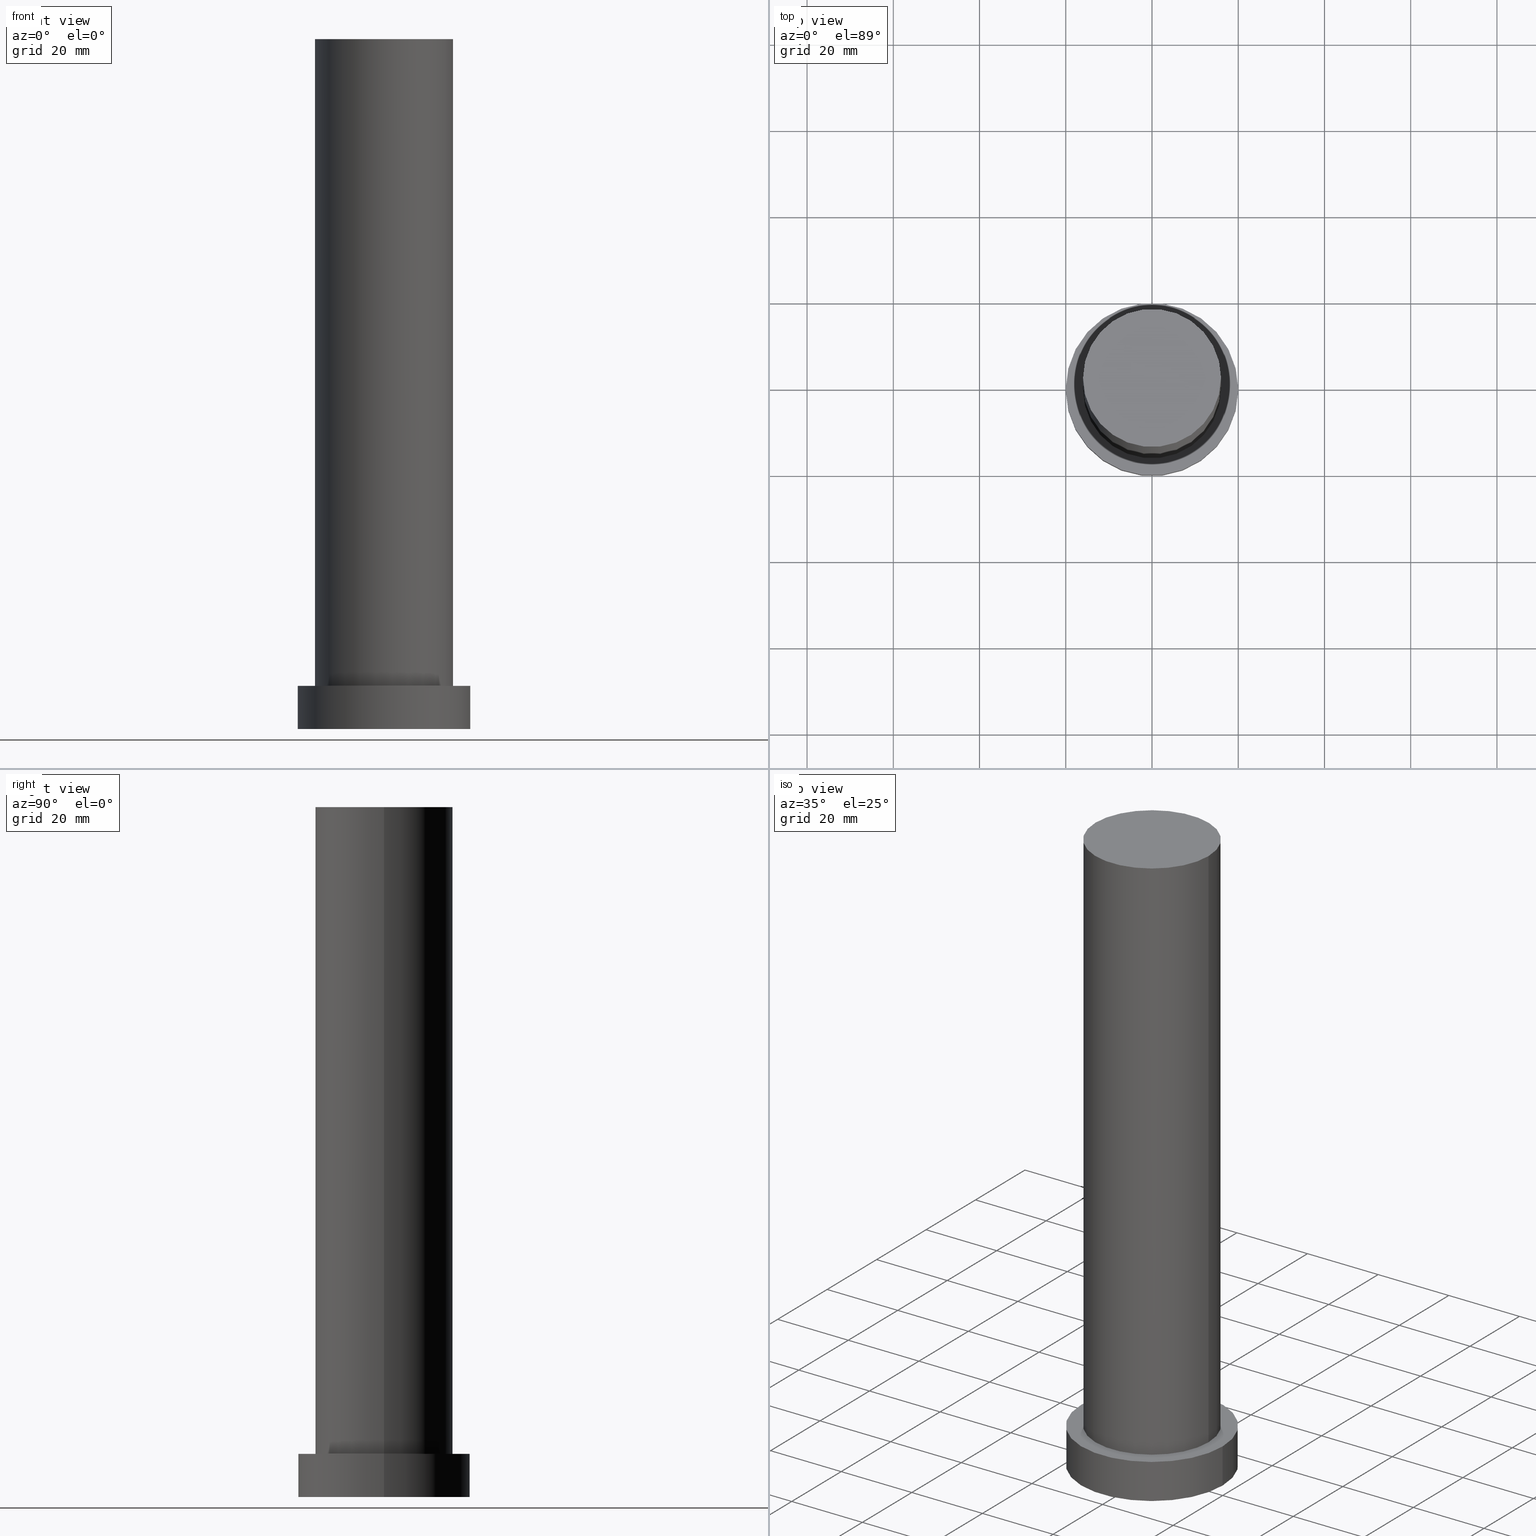
[diagram: canonical four-view strip — front | top / right | iso, engineering-drawing reading convention]
A machine part, canonical four-view strip (front | top / right | iso — engineering-drawing reading convention). The complete STEP part file that produces these views, byte-faithful:
ISO-10303-21;
HEADER;
FILE_DESCRIPTION (( 'STEP AP203' ),
    '1' );
FILE_NAME ('8360.STEP',
    '2023-02-12T10:26:55',
    ( '' ),
    ( '' ),
    'SwSTEP 2.0',
    'SolidWorks 2019',
    '' );
FILE_SCHEMA (( 'CONFIG_CONTROL_DESIGN' ));
ENDSEC;

DATA;
#1 = DIRECTION ( 'NONE',  ( -1.000000000000000000, 0.000000000000000000, 0.000000000000000000 ) ) ;
#2 = CC_DESIGN_PERSON_AND_ORGANIZATION_ASSIGNMENT ( #226, #243, ( #116 ) ) ;
#3 = FACE_BOUND ( 'NONE', #194, .T. ) ;
#4 = CARTESIAN_POINT ( 'NONE',  ( 0.000000000000000000, 0.000000000000000000, 10.00000000000000000 ) ) ;
#5 = CARTESIAN_POINT ( 'NONE',  ( 0.000000000000000000, 0.000000000000000000, 0.000000000000000000 ) ) ;
#6 = EDGE_CURVE ( 'NONE', #139, #18, #240, .T. ) ;
#7 = COORDINATED_UNIVERSAL_TIME_OFFSET ( 1, 0, .AHEAD. ) ;
#8 = APPROVAL_DATE_TIME ( #87, #122 ) ;
#9 = EDGE_CURVE ( 'NONE', #158, #244, #114, .T. ) ;
#10 = DATE_AND_TIME ( #29, #184 ) ;
#11 = CARTESIAN_POINT ( 'NONE',  ( 0.000000000000000000, 0.000000000000000000, 160.0000000000000000 ) ) ;
#12 = CC_DESIGN_PERSON_AND_ORGANIZATION_ASSIGNMENT ( #169, #31, ( #127 ) ) ;
#13 = AXIS2_PLACEMENT_3D ( 'NONE', #74, #197, #157 ) ;
#14 = FACE_OUTER_BOUND ( 'NONE', #88, .T. ) ;
#15 = CYLINDRICAL_SURFACE ( 'NONE', #227, 20.00000000000000000 ) ;
#16 = ADVANCED_FACE ( 'NONE', ( #39 ), #179, .T. ) ;
#17 = ORIENTED_EDGE ( 'NONE', *, *, #9, .T. ) ;
#18 = VERTEX_POINT ( 'NONE', #77 ) ;
#19 = AXIS2_PLACEMENT_3D ( 'NONE', #186, #80, #168 ) ;
#20 = CARTESIAN_POINT ( 'NONE',  ( 16.00000000000000000, 1.959434878635765131E-15, 160.0000000000000000 ) ) ;
#21 = PLANE ( 'NONE',  #67 ) ;
#22 = ORGANIZATION ( 'NEUR�EN�', 'NEUR�EN�', '' ) ;
#23 = CARTESIAN_POINT ( 'NONE',  ( -16.00000000000000000, 0.000000000000000000, 160.0000000000000000 ) ) ;
#24 = CARTESIAN_POINT ( 'NONE',  ( 0.000000000000000000, 0.000000000000000000, 160.0000000000000000 ) ) ;
#25 = APPROVAL_ROLE ( '' ) ;
#26 =( GEOMETRIC_REPRESENTATION_CONTEXT ( 3 ) GLOBAL_UNCERTAINTY_ASSIGNED_CONTEXT ( ( #207 ) ) GLOBAL_UNIT_ASSIGNED_CONTEXT ( ( #66, #199, #241 ) ) REPRESENTATION_CONTEXT ( 'NONE', 'WORKASPACE' ) );
#27 = APPROVAL_STATUS ( 'not_yet_approved' ) ;
#28 = CALENDAR_DATE ( 2023, 12, 2 ) ;
#29 = CALENDAR_DATE ( 2023, 12, 2 ) ;
#30 = LOCAL_TIME ( 11, 26, 55.00000000000000000, #246 ) ;
#31 = PERSON_AND_ORGANIZATION_ROLE ( 'classification_officer' ) ;
#32 = ORIENTED_EDGE ( 'NONE', *, *, #177, .F. ) ;
#33 = CC_DESIGN_DATE_AND_TIME_ASSIGNMENT ( #10, #68, ( #149 ) ) ;
#34 = ORIENTED_EDGE ( 'NONE', *, *, #6, .T. ) ;
#35 = DIRECTION ( 'NONE',  ( -1.000000000000000000, 0.000000000000000000, 0.000000000000000000 ) ) ;
#36 = AXIS2_PLACEMENT_3D ( 'NONE', #11, #92, #118 ) ;
#37 = DIRECTION ( 'NONE',  ( 0.000000000000000000, 0.000000000000000000, 1.000000000000000000 ) ) ;
#38 = CIRCLE ( 'NONE', #19, 16.00000000000000000 ) ;
#39 = FACE_OUTER_BOUND ( 'NONE', #255, .T. ) ;
#40 = CARTESIAN_POINT ( 'NONE',  ( 0.000000000000000000, 0.000000000000000000, 160.0000000000000000 ) ) ;
#41 = DIRECTION ( 'NONE',  ( 0.000000000000000000, 0.000000000000000000, 1.000000000000000000 ) ) ;
#42 = ADVANCED_FACE ( 'NONE', ( #75 ), #56, .T. ) ;
#43 = APPROVAL_DATE_TIME ( #228, #203 ) ;
#44 = COORDINATED_UNIVERSAL_TIME_OFFSET ( 1, 0, .AHEAD. ) ;
#45 = SHAPE_DEFINITION_REPRESENTATION ( #125, #57 ) ;
#46 = APPLICATION_CONTEXT ( 'configuration controlled 3d designs of mechanical parts and assemblies' ) ;
#47 = CIRCLE ( 'NONE', #13, 20.00000000000000000 ) ;
#48 = AXIS2_PLACEMENT_3D ( 'NONE', #64, #201, #222 ) ;
#49 = AXIS2_PLACEMENT_3D ( 'NONE', #221, #163, #63 ) ;
#50 = VERTEX_POINT ( 'NONE', #253 ) ;
#51 = CYLINDRICAL_SURFACE ( 'NONE', #167, 20.00000000000000000 ) ;
#52 = ADVANCED_FACE ( 'NONE', ( #231 ), #51, .T. ) ;
#53 = DIRECTION ( 'NONE',  ( 0.000000000000000000, 0.000000000000000000, 1.000000000000000000 ) ) ;
#54 = DIRECTION ( 'NONE',  ( 1.000000000000000000, 0.000000000000000000, 0.000000000000000000 ) ) ;
#55 = EDGE_LOOP ( 'NONE', ( #160, #193 ) ) ;
#56 = CYLINDRICAL_SURFACE ( 'NONE', #36, 16.00000000000000000 ) ;
#57 = ADVANCED_BREP_SHAPE_REPRESENTATION ( '8360', ( #183, #49 ), #26 ) ;
#58 = AXIS2_PLACEMENT_3D ( 'NONE', #95, #37, #156 ) ;
#59 = ADVANCED_FACE ( 'NONE', ( #14 ), #93, .T. ) ;
#60 = CIRCLE ( 'NONE', #171, 16.00000000000000000 ) ;
#61 = FACE_OUTER_BOUND ( 'NONE', #55, .T. ) ;
#62 = CC_DESIGN_APPROVAL ( #225, ( #127 ) ) ;
#63 = DIRECTION ( 'NONE',  ( 1.000000000000000000, 0.000000000000000000, 0.000000000000000000 ) ) ;
#64 = CARTESIAN_POINT ( 'NONE',  ( 0.000000000000000000, 0.000000000000000000, 10.00000000000000000 ) ) ;
#65 = PRODUCT_RELATED_PRODUCT_CATEGORY ( 'detail', '', ( #116 ) ) ;
#66 =( LENGTH_UNIT ( ) NAMED_UNIT ( * ) SI_UNIT ( .MILLI., .METRE. ) );
#67 = AXIS2_PLACEMENT_3D ( 'NONE', #5, #204, #223 ) ;
#68 = DATE_TIME_ROLE ( 'creation_date' ) ;
#69 = PERSON_AND_ORGANIZATION ( #212, #22 ) ;
#70 = CALENDAR_DATE ( 2023, 12, 2 ) ;
#71 = ORIENTED_EDGE ( 'NONE', *, *, #100, .F. ) ;
#72 = ORIENTED_EDGE ( 'NONE', *, *, #105, .T. ) ;
#73 = EDGE_CURVE ( 'NONE', #244, #158, #47, .T. ) ;
#74 = CARTESIAN_POINT ( 'NONE',  ( 0.000000000000000000, 0.000000000000000000, 0.000000000000000000 ) ) ;
#75 = FACE_OUTER_BOUND ( 'NONE', #195, .T. ) ;
#76 = ORIENTED_EDGE ( 'NONE', *, *, #73, .F. ) ;
#77 = CARTESIAN_POINT ( 'NONE',  ( -16.00000000000000000, 0.000000000000000000, 10.00000000000000000 ) ) ;
#78 = EDGE_CURVE ( 'NONE', #18, #139, #60, .T. ) ;
#79 = DIRECTION ( 'NONE',  ( -0.000000000000000000, -0.000000000000000000, -1.000000000000000000 ) ) ;
#80 = DIRECTION ( 'NONE',  ( 0.000000000000000000, 0.000000000000000000, 1.000000000000000000 ) ) ;
#81 = DIRECTION ( 'NONE',  ( -0.000000000000000000, -0.000000000000000000, -1.000000000000000000 ) ) ;
#82 = CARTESIAN_POINT ( 'NONE',  ( 20.00000000000000000, 2.449293598294706513E-15, 10.00000000000000000 ) ) ;
#83 = DIRECTION ( 'NONE',  ( 1.000000000000000000, 0.000000000000000000, 0.000000000000000000 ) ) ;
#84 = APPROVAL_PERSON_ORGANIZATION ( #190, #203, #25 ) ;
#85 = SECURITY_CLASSIFICATION_LEVEL ( 'unclassified' ) ;
#86 = PERSON_AND_ORGANIZATION ( #212, #22 ) ;
#87 = DATE_AND_TIME ( #28, #175 ) ;
#88 = EDGE_LOOP ( 'NONE', ( #91, #216 ) ) ;
#89 = ADVANCED_FACE ( 'NONE', ( #117 ), #15, .T. ) ;
#90 = PERSON_AND_ORGANIZATION_ROLE ( 'creator' ) ;
#91 = ORIENTED_EDGE ( 'NONE', *, *, #208, .T. ) ;
#92 = DIRECTION ( 'NONE',  ( -0.000000000000000000, -0.000000000000000000, -1.000000000000000000 ) ) ;
#93 = PLANE ( 'NONE',  #133 ) ;
#94 = CARTESIAN_POINT ( 'NONE',  ( 0.000000000000000000, 0.000000000000000000, 10.00000000000000000 ) ) ;
#95 = CARTESIAN_POINT ( 'NONE',  ( 0.000000000000000000, 0.000000000000000000, 10.00000000000000000 ) ) ;
#96 = CC_DESIGN_PERSON_AND_ORGANIZATION_ASSIGNMENT ( #107, #90, ( #149 ) ) ;
#97 = ORIENTED_EDGE ( 'NONE', *, *, #78, .T. ) ;
#98 = PLANE ( 'NONE',  #48 ) ;
#99 = CARTESIAN_POINT ( 'NONE',  ( 16.00000000000000000, 1.959434878635765131E-15, 10.00000000000000000 ) ) ;
#100 = EDGE_CURVE ( 'NONE', #236, #158, #238, .T. ) ;
#101 = LINE ( 'NONE', #102, #233 ) ;
#102 = CARTESIAN_POINT ( 'NONE',  ( 16.00000000000000000, 1.959434878635765131E-15, 160.0000000000000000 ) ) ;
#103 = DIRECTION ( 'NONE',  ( 0.000000000000000000, 0.000000000000000000, 1.000000000000000000 ) ) ;
#104 = CALENDAR_DATE ( 2023, 12, 2 ) ;
#105 = EDGE_CURVE ( 'NONE', #155, #139, #101, .T. ) ;
#106 = APPLICATION_PROTOCOL_DEFINITION ( 'international standard', 'config_control_design', 1994, #46 ) ;
#107 = PERSON_AND_ORGANIZATION ( #212, #22 ) ;
#108 = ORIENTED_EDGE ( 'NONE', *, *, #6, .F. ) ;
#109 = CC_DESIGN_PERSON_AND_ORGANIZATION_ASSIGNMENT ( #154, #248, ( #215 ) ) ;
#110 = CLOSED_SHELL ( 'NONE', ( #16, #52, #89, #140, #119, #42, #59 ) ) ;
#111 = AXIS2_PLACEMENT_3D ( 'NONE', #126, #103, #83 ) ;
#112 = ORIENTED_EDGE ( 'NONE', *, *, #166, .F. ) ;
#113 = DESIGN_CONTEXT ( 'detailed design', #46, 'design' ) ;
#114 = CIRCLE ( 'NONE', #202, 20.00000000000000000 ) ;
#115 = ORIENTED_EDGE ( 'NONE', *, *, #9, .F. ) ;
#116 = PRODUCT ( '8360', '8360', '', ( #144 ) ) ;
#117 = FACE_OUTER_BOUND ( 'NONE', #134, .T. ) ;
#118 = DIRECTION ( 'NONE',  ( -1.000000000000000000, 0.000000000000000000, 0.000000000000000000 ) ) ;
#119 = ADVANCED_FACE ( 'NONE', ( #121 ), #21, .F. ) ;
#120 = DIRECTION ( 'NONE',  ( -0.000000000000000000, -0.000000000000000000, -1.000000000000000000 ) ) ;
#121 = FACE_OUTER_BOUND ( 'NONE', #191, .T. ) ;
#122 = APPROVAL ( #131, 'NEUR�EN�' ) ;
#123 = APPLICATION_CONTEXT ( 'configuration controlled 3d designs of mechanical parts and assemblies' ) ;
#124 = DIRECTION ( 'NONE',  ( -1.000000000000000000, 0.000000000000000000, 0.000000000000000000 ) ) ;
#125 = PRODUCT_DEFINITION_SHAPE ( 'NONE', 'NONE',  #149 ) ;
#126 = CARTESIAN_POINT ( 'NONE',  ( 0.000000000000000000, 0.000000000000000000, 10.00000000000000000 ) ) ;
#127 = SECURITY_CLASSIFICATION ( '', '', #85 ) ;
#128 = CARTESIAN_POINT ( 'NONE',  ( -16.00000000000000000, 0.000000000000000000, 160.0000000000000000 ) ) ;
#129 = EDGE_CURVE ( 'NONE', #155, #178, #192, .T. ) ;
#130 = COORDINATED_UNIVERSAL_TIME_OFFSET ( 1, 0, .AHEAD. ) ;
#131 = APPROVAL_STATUS ( 'not_yet_approved' ) ;
#132 = ORIENTED_EDGE ( 'NONE', *, *, #105, .F. ) ;
#133 = AXIS2_PLACEMENT_3D ( 'NONE', #214, #196, #176 ) ;
#134 = EDGE_LOOP ( 'NONE', ( #71, #249, #247, #141 ) ) ;
#135 = CARTESIAN_POINT ( 'NONE',  ( 0.000000000000000000, 0.000000000000000000, 10.00000000000000000 ) ) ;
#136 = DIRECTION ( 'NONE',  ( 1.000000000000000000, 0.000000000000000000, 0.000000000000000000 ) ) ;
#137 = CIRCLE ( 'NONE', #111, 20.00000000000000000 ) ;
#138 = AXIS2_PLACEMENT_3D ( 'NONE', #4, #205, #161 ) ;
#139 = VERTEX_POINT ( 'NONE', #99 ) ;
#140 = ADVANCED_FACE ( 'NONE', ( #3, #61 ), #98, .T. ) ;
#141 = ORIENTED_EDGE ( 'NONE', *, *, #73, .T. ) ;
#142 = ORIENTED_EDGE ( 'NONE', *, *, #173, .T. ) ;
#143 = CARTESIAN_POINT ( 'NONE',  ( 20.00000000000000000, 2.449293598294706513E-15, 0.000000000000000000 ) ) ;
#144 = MECHANICAL_CONTEXT ( 'NONE', #123, 'mechanical' ) ;
#145 = CARTESIAN_POINT ( 'NONE',  ( 20.00000000000000000, 2.449293598294706513E-15, 10.00000000000000000 ) ) ;
#146 = AXIS2_PLACEMENT_3D ( 'NONE', #40, #120, #1 ) ;
#147 = AXIS2_PLACEMENT_3D ( 'NONE', #24, #41, #200 ) ;
#148 = CIRCLE ( 'NONE', #138, 20.00000000000000000 ) ;
#149 = PRODUCT_DEFINITION ( 'NEZN�M�', '', #215, #113 ) ;
#150 = DATE_AND_TIME ( #104, #189 ) ;
#151 = APPROVAL_DATE_TIME ( #245, #225 ) ;
#152 = APPROVAL_PERSON_ORGANIZATION ( #86, #225, #229 ) ;
#153 = APPROVAL_ROLE ( '' ) ;
#154 = PERSON_AND_ORGANIZATION ( #212, #22 ) ;
#155 = VERTEX_POINT ( 'NONE', #20 ) ;
#156 = DIRECTION ( 'NONE',  ( 1.000000000000000000, 0.000000000000000000, 0.000000000000000000 ) ) ;
#157 = DIRECTION ( 'NONE',  ( 1.000000000000000000, 0.000000000000000000, 0.000000000000000000 ) ) ;
#158 = VERTEX_POINT ( 'NONE', #143 ) ;
#159 = ORIENTED_EDGE ( 'NONE', *, *, #173, .F. ) ;
#160 = ORIENTED_EDGE ( 'NONE', *, *, #218, .T. ) ;
#161 = DIRECTION ( 'NONE',  ( 1.000000000000000000, 0.000000000000000000, 0.000000000000000000 ) ) ;
#162 = VECTOR ( 'NONE', #79, 1000.000000000000000 ) ;
#163 = DIRECTION ( 'NONE',  ( 0.000000000000000000, 0.000000000000000000, 1.000000000000000000 ) ) ;
#164 = LINE ( 'NONE', #165, #251 ) ;
#165 = CARTESIAN_POINT ( 'NONE',  ( -20.00000000000000000, 0.000000000000000000, 10.00000000000000000 ) ) ;
#166 = EDGE_CURVE ( 'NONE', #50, #244, #164, .T. ) ;
#167 = AXIS2_PLACEMENT_3D ( 'NONE', #135, #213, #35 ) ;
#168 = DIRECTION ( 'NONE',  ( 1.000000000000000000, 0.000000000000000000, 0.000000000000000000 ) ) ;
#169 = PERSON_AND_ORGANIZATION ( #212, #22 ) ;
#170 = CALENDAR_DATE ( 2023, 12, 2 ) ;
#171 = AXIS2_PLACEMENT_3D ( 'NONE', #232, #53, #136 ) ;
#172 = PERSON_AND_ORGANIZATION_ROLE ( 'design_supplier' ) ;
#173 = EDGE_CURVE ( 'NONE', #178, #18, #239, .T. ) ;
#174 = ORIENTED_EDGE ( 'NONE', *, *, #100, .T. ) ;
#175 = LOCAL_TIME ( 11, 26, 55.00000000000000000, #44 ) ;
#176 = DIRECTION ( 'NONE',  ( 1.000000000000000000, 0.000000000000000000, -0.000000000000000000 ) ) ;
#177 = EDGE_CURVE ( 'NONE', #236, #50, #137, .T. ) ;
#178 = VERTEX_POINT ( 'NONE', #23 ) ;
#179 = CYLINDRICAL_SURFACE ( 'NONE', #146, 16.00000000000000000 ) ;
#180 = LOCAL_TIME ( 11, 26, 55.00000000000000000, #210 ) ;
#181 = DIRECTION ( 'NONE',  ( 0.000000000000000000, 0.000000000000000000, 1.000000000000000000 ) ) ;
#182 = CARTESIAN_POINT ( 'NONE',  ( -20.00000000000000000, 0.000000000000000000, 0.000000000000000000 ) ) ;
#183 = MANIFOLD_SOLID_BREP ( 'P�idat vysunut�m3', #110 ) ;
#184 = LOCAL_TIME ( 11, 26, 55.00000000000000000, #7 ) ;
#185 = DIRECTION ( 'NONE',  ( -0.000000000000000000, -0.000000000000000000, -1.000000000000000000 ) ) ;
#186 = CARTESIAN_POINT ( 'NONE',  ( 0.000000000000000000, 0.000000000000000000, 160.0000000000000000 ) ) ;
#187 = DIRECTION ( 'NONE',  ( -0.000000000000000000, -0.000000000000000000, -1.000000000000000000 ) ) ;
#188 = APPROVAL_STATUS ( 'not_yet_approved' ) ;
#189 = LOCAL_TIME ( 11, 26, 55.00000000000000000, #130 ) ;
#190 = PERSON_AND_ORGANIZATION ( #212, #22 ) ;
#191 = EDGE_LOOP ( 'NONE', ( #76, #115 ) ) ;
#192 = CIRCLE ( 'NONE', #147, 16.00000000000000000 ) ;
#193 = ORIENTED_EDGE ( 'NONE', *, *, #177, .T. ) ;
#194 = EDGE_LOOP ( 'NONE', ( #198, #108 ) ) ;
#195 = EDGE_LOOP ( 'NONE', ( #132, #217, #142, #97 ) ) ;
#196 = DIRECTION ( 'NONE',  ( 0.000000000000000000, 0.000000000000000000, 1.000000000000000000 ) ) ;
#197 = DIRECTION ( 'NONE',  ( 0.000000000000000000, 0.000000000000000000, 1.000000000000000000 ) ) ;
#198 = ORIENTED_EDGE ( 'NONE', *, *, #78, .F. ) ;
#199 =( NAMED_UNIT ( * ) PLANE_ANGLE_UNIT ( ) SI_UNIT ( $, .RADIAN. ) );
#200 = DIRECTION ( 'NONE',  ( 1.000000000000000000, 0.000000000000000000, 0.000000000000000000 ) ) ;
#201 = DIRECTION ( 'NONE',  ( 0.000000000000000000, 0.000000000000000000, 1.000000000000000000 ) ) ;
#202 = AXIS2_PLACEMENT_3D ( 'NONE', #250, #181, #54 ) ;
#203 = APPROVAL ( #188, 'NEUR�EN�' ) ;
#204 = DIRECTION ( 'NONE',  ( 0.000000000000000000, 0.000000000000000000, 1.000000000000000000 ) ) ;
#205 = DIRECTION ( 'NONE',  ( 0.000000000000000000, 0.000000000000000000, 1.000000000000000000 ) ) ;
#206 = DATE_TIME_ROLE ( 'classification_date' ) ;
#207 = UNCERTAINTY_MEASURE_WITH_UNIT (LENGTH_MEASURE( 1.000000000000000082E-05 ), #66, 'distance_accuracy_value', 'NONE');
#208 = EDGE_CURVE ( 'NONE', #178, #155, #38, .T. ) ;
#209 = CC_DESIGN_SECURITY_CLASSIFICATION ( #127, ( #215 ) ) ;
#210 = COORDINATED_UNIVERSAL_TIME_OFFSET ( 1, 0, .AHEAD. ) ;
#211 = PERSON_AND_ORGANIZATION ( #212, #22 ) ;
#212 = PERSON ( 'NEUR�EN�', 'NEUR�EN�', 'NEUR�EN�', ('NEUR�EN�'), ('NEUR�EN�'), ('NEUR�EN�') ) ;
#213 = DIRECTION ( 'NONE',  ( -0.000000000000000000, -0.000000000000000000, -1.000000000000000000 ) ) ;
#214 = CARTESIAN_POINT ( 'NONE',  ( 0.000000000000000000, 0.000000000000000000, 160.0000000000000000 ) ) ;
#215 = PRODUCT_DEFINITION_FORMATION_WITH_SPECIFIED_SOURCE ( 'LIBOVOLN�', '', #116, .NOT_KNOWN. ) ;
#216 = ORIENTED_EDGE ( 'NONE', *, *, #129, .T. ) ;
#217 = ORIENTED_EDGE ( 'NONE', *, *, #208, .F. ) ;
#218 = EDGE_CURVE ( 'NONE', #50, #236, #148, .T. ) ;
#219 = APPLICATION_PROTOCOL_DEFINITION ( 'international standard', 'config_control_design', 1994, #123 ) ;
#220 = CC_DESIGN_APPROVAL ( #122, ( #215 ) ) ;
#221 = CARTESIAN_POINT ( 'NONE',  ( 0.000000000000000000, 0.000000000000000000, 0.000000000000000000 ) ) ;
#222 = DIRECTION ( 'NONE',  ( 1.000000000000000000, 0.000000000000000000, -0.000000000000000000 ) ) ;
#223 = DIRECTION ( 'NONE',  ( 1.000000000000000000, 0.000000000000000000, -0.000000000000000000 ) ) ;
#224 = APPROVAL_PERSON_ORGANIZATION ( #211, #122, #153 ) ;
#225 = APPROVAL ( #27, 'NEUR�EN�' ) ;
#226 = PERSON_AND_ORGANIZATION ( #212, #22 ) ;
#227 = AXIS2_PLACEMENT_3D ( 'NONE', #94, #234, #124 ) ;
#228 = DATE_AND_TIME ( #70, #30 ) ;
#229 = APPROVAL_ROLE ( '' ) ;
#230 = CC_DESIGN_APPROVAL ( #203, ( #149 ) ) ;
#231 = FACE_OUTER_BOUND ( 'NONE', #235, .T. ) ;
#232 = CARTESIAN_POINT ( 'NONE',  ( 0.000000000000000000, 0.000000000000000000, 10.00000000000000000 ) ) ;
#233 = VECTOR ( 'NONE', #185, 1000.000000000000000 ) ;
#234 = DIRECTION ( 'NONE',  ( -0.000000000000000000, -0.000000000000000000, -1.000000000000000000 ) ) ;
#235 = EDGE_LOOP ( 'NONE', ( #32, #174, #17, #112 ) ) ;
#236 = VERTEX_POINT ( 'NONE', #82 ) ;
#237 = VECTOR ( 'NONE', #81, 1000.000000000000000 ) ;
#238 = LINE ( 'NONE', #145, #237 ) ;
#239 = LINE ( 'NONE', #128, #162 ) ;
#240 = CIRCLE ( 'NONE', #58, 16.00000000000000000 ) ;
#241 =( NAMED_UNIT ( * ) SI_UNIT ( $, .STERADIAN. ) SOLID_ANGLE_UNIT ( ) );
#242 = CC_DESIGN_PERSON_AND_ORGANIZATION_ASSIGNMENT ( #69, #172, ( #215 ) ) ;
#243 = PERSON_AND_ORGANIZATION_ROLE ( 'design_owner' ) ;
#244 = VERTEX_POINT ( 'NONE', #182 ) ;
#245 = DATE_AND_TIME ( #170, #180 ) ;
#246 = COORDINATED_UNIVERSAL_TIME_OFFSET ( 1, 0, .AHEAD. ) ;
#247 = ORIENTED_EDGE ( 'NONE', *, *, #166, .T. ) ;
#248 = PERSON_AND_ORGANIZATION_ROLE ( 'creator' ) ;
#249 = ORIENTED_EDGE ( 'NONE', *, *, #218, .F. ) ;
#250 = CARTESIAN_POINT ( 'NONE',  ( 0.000000000000000000, 0.000000000000000000, 0.000000000000000000 ) ) ;
#251 = VECTOR ( 'NONE', #187, 1000.000000000000000 ) ;
#252 = CC_DESIGN_DATE_AND_TIME_ASSIGNMENT ( #150, #206, ( #127 ) ) ;
#253 = CARTESIAN_POINT ( 'NONE',  ( -20.00000000000000000, 0.000000000000000000, 10.00000000000000000 ) ) ;
#254 = ORIENTED_EDGE ( 'NONE', *, *, #129, .F. ) ;
#255 = EDGE_LOOP ( 'NONE', ( #254, #72, #34, #159 ) ) ;
ENDSEC;
END-ISO-10303-21;
